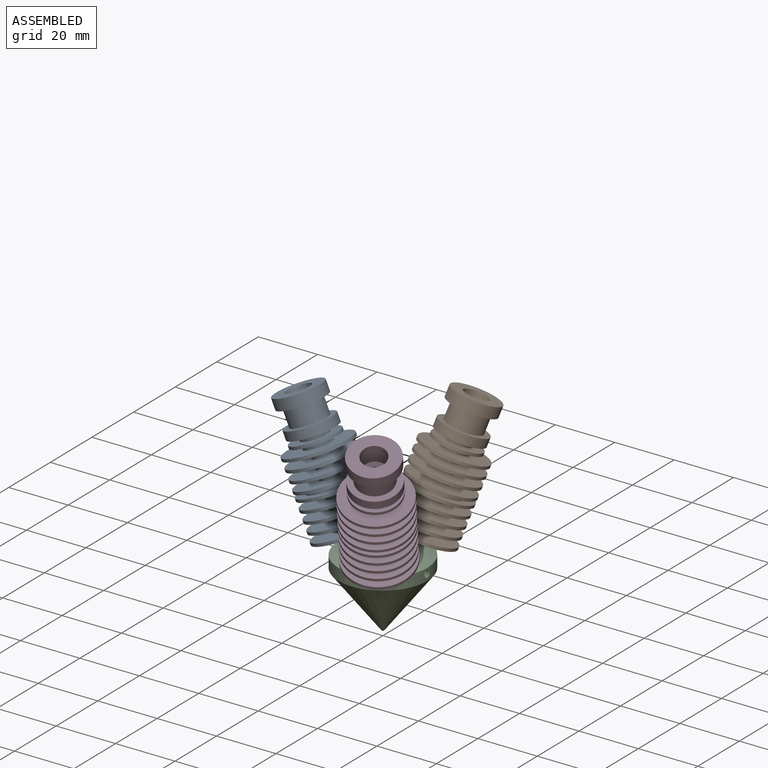
[diagram: assembled view]
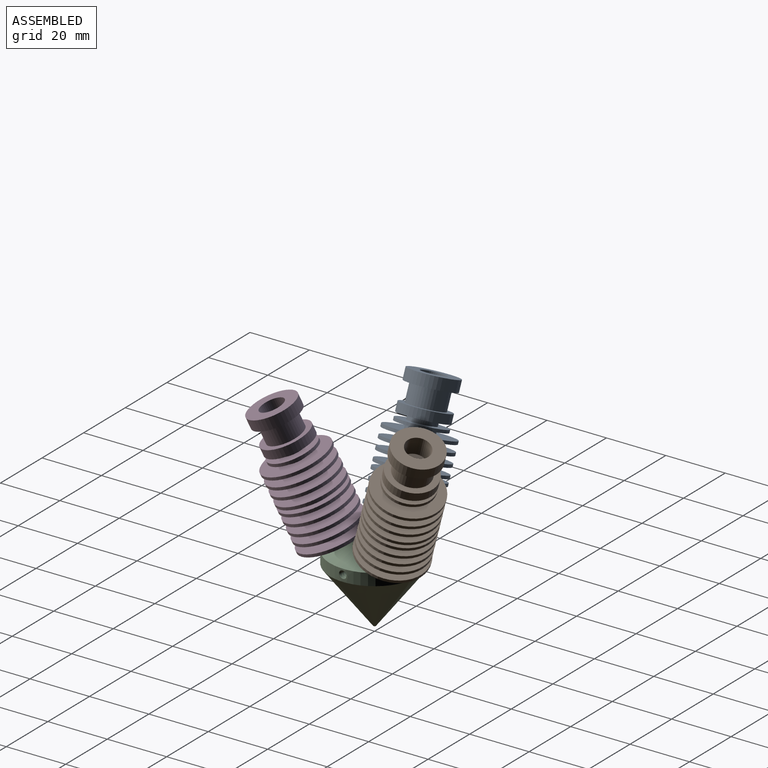
[diagram: assembled view, second angle]
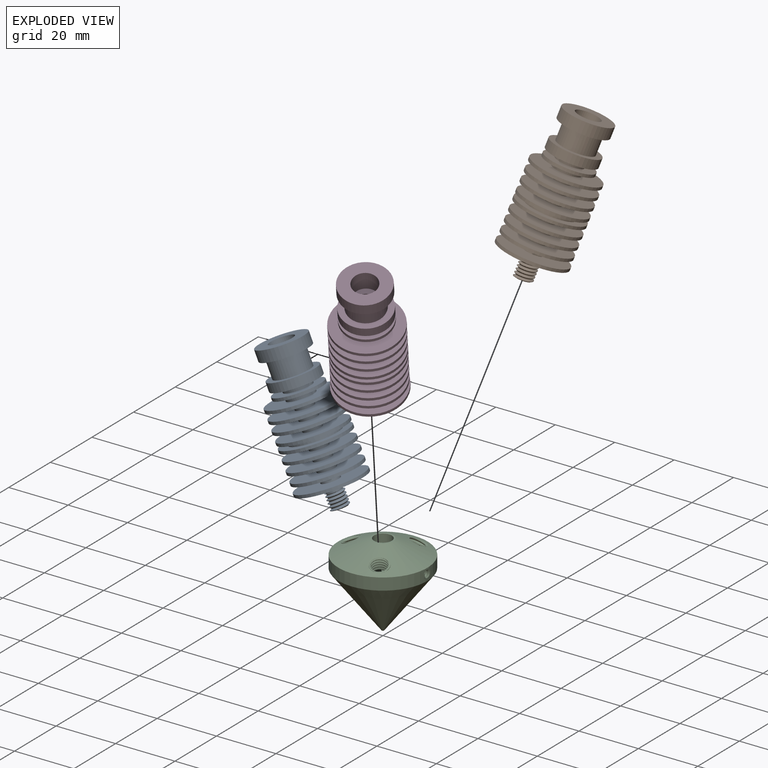
[diagram: exploded view]
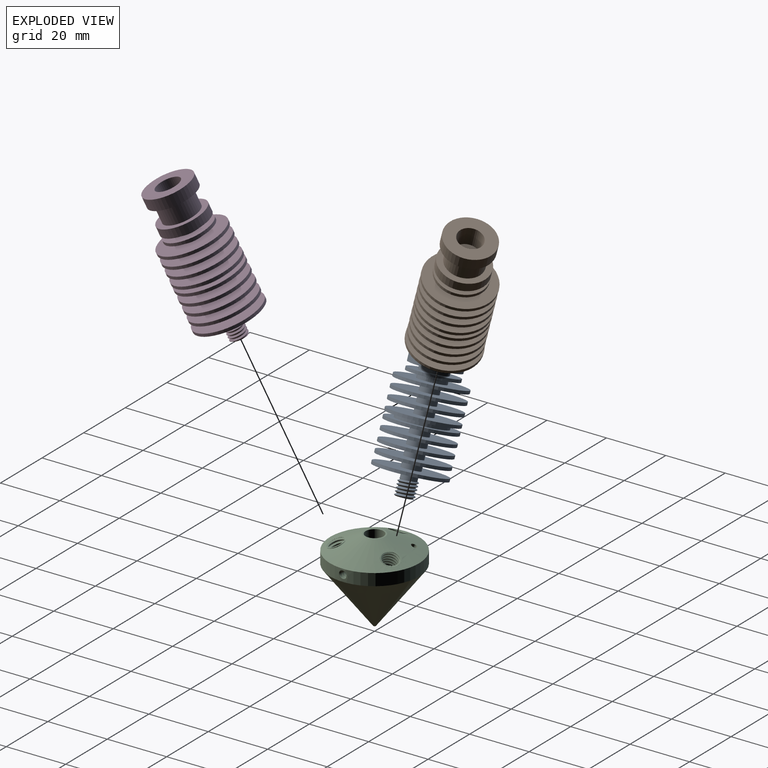
[diagram: exploded view, second angle]
ASSEMBLY  parts=4 mates=3
PART A: 58 faces, bbox 22.6x22.6x50.5 mm
  f0: plane 5.69x5.66mm, normal (0,0,-1), area 9.6mm2, adj f17,f18,f55,f56,f57
  f1: cylinder r=11mm len=22mm, axis (0,0,-1), area 69.1mm2, adj f2,f53
  f2: plane 22x22mm, normal (0,0,-1), area 351.9mm2, adj f1,f3
  f3: cylinder r=3mm len=6mm, axis (0,0,-1), area 42.4mm2, adj f2,f4
  f4: plane 22x22mm, normal (0,0,1), area 351.9mm2, adj f3,f5
  f5: cylinder r=11mm len=22mm, axis (0,0,-1), area 69.1mm2, adj f4,f6
  f6: plane 22x22mm, normal (0,0,-1), area 351.9mm2, adj f5,f7
  f7: cylinder r=3mm len=6mm, axis (0,0,-1), area 42.4mm2, adj f6,f8
  f8: plane 22x22mm, normal (0,0,1), area 351.9mm2, adj f7,f9
  f9: cylinder r=11mm len=22mm, axis (0,0,-1), area 69.1mm2, adj f8,f10
  f10: plane 22x22mm, normal (0,0,-1), area 351.9mm2, adj f9,f11
  f11: cylinder r=3mm len=6mm, axis (0,0,-1), area 42.4mm2, adj f10,f12
  f12: plane 22.3x22.3mm, normal (0,0,1), area 362.3mm2, adj f11,f13
  f13: cylinder r=11.15mm len=22.3mm, axis (0,0,-1), area 70.1mm2, adj f12,f14
  f14: plane 22.3x22.3mm, normal (0,0,-1), area 370.9mm2, adj f13,f15
  f15: cylinder r=2.5mm len=5mm, axis (0,0,-1), area 33mm2, adj f14,f16,f54
  f16: plane 5.63x5.38mm, normal (0,0,1), area 3.5mm2, adj f15,f17,f56,f57
  f17: cylinder r=3mm len=6mm, axis (0,0,-1), area 12mm2, adj f0,f16,f56,f57
  f18: cylinder r=2.05mm len=43.3mm, axis (0,0,-1), area 557.7mm2, adj f0,f19
  f19: plane 8x8mm, normal (0,0,1), area 37.1mm2, adj f18,f20
  f20: cylinder r=4mm len=8mm, axis (0,0,-1), area 163.4mm2, adj f19,f21
  f21: plane 16x16mm, normal (0,0,1), area 150.8mm2, adj f20,f22
  f22: cylinder r=8mm len=16mm, axis (0,0,-1), area 186mm2, adj f21,f23
  f23: plane 16x16mm, normal (0,0,-1), area 88mm2, adj f22,f24
  f24: cylinder r=6mm len=12mm, axis (0,0,-1), area 226.2mm2, adj f23,f25
  f25: plane 16x16mm, normal (0,0,1), area 88mm2, adj f24,f26
  f26: cylinder r=8mm len=16mm, axis (0,0,-1), area 150.8mm2, adj f25,f27
  f27: plane 16x16mm, normal (0,0,-1), area 137.4mm2, adj f26,f28
  f28: cylinder r=4.5mm len=9mm, axis (0,0,-1), area 42.4mm2, adj f27,f29
  f29: plane 16x16mm, normal (0,0,1), area 137.4mm2, adj f28,f30
  f30: cylinder r=8mm len=16mm, axis (0,0,-1), area 50.3mm2, adj f29,f31
  f31: plane 16x16mm, normal (0,0,-1), area 137.4mm2, adj f30,f32
  f32: cylinder r=4.5mm len=9mm, axis (0,0,-1), area 42.4mm2, adj f31,f33
  f33: plane 22x22mm, normal (0,0,1), area 316.5mm2, adj f32,f34
  f34: cylinder r=11mm len=22mm, axis (0,0,-1), area 69.1mm2, adj f33,f35
  f35: plane 22x22mm, normal (0,0,-1), area 351.9mm2, adj f34,f36
  f36: cylinder r=3mm len=6mm, axis (0,0,-1), area 42.4mm2, adj f35,f37
  f37: plane 22x22mm, normal (0,0,1), area 351.9mm2, adj f36,f38
  f38: cylinder r=11mm len=22mm, axis (0,0,-1), area 69.1mm2, adj f37,f39
  f39: plane 22x22mm, normal (0,0,-1), area 351.9mm2, adj f38,f40
  f40: cylinder r=3mm len=6mm, axis (0,0,-1), area 42.4mm2, adj f39,f41
  f41: plane 22x22mm, normal (0,0,1), area 351.9mm2, adj f40,f42
  f42: cylinder r=11mm len=22mm, axis (0,0,-1), area 69.1mm2, adj f41,f43
  f43: plane 22x22mm, normal (0,0,-1), area 351.9mm2, adj f42,f44
  f44: cylinder r=3mm len=6mm, axis (0,0,-1), area 42.4mm2, adj f43,f45
  f45: plane 22x22mm, normal (0,0,1), area 351.9mm2, adj f44,f46
  f46: cylinder r=11mm len=22mm, axis (0,0,-1), area 69.1mm2, adj f45,f47
  f47: plane 22x22mm, normal (0,0,-1), area 179.1mm2, adj f46,f48
  f48: cylinder r=8mm len=16mm, axis (0,0,-1), area 62.8mm2, adj f47,f49
  f49: plane 22x22mm, normal (0,0,1), area 179.1mm2, adj f48,f50
  f50: cylinder r=11mm len=22mm, axis (0,0,-1), area 69.1mm2, adj f49,f51
  f51: plane 22x22mm, normal (0,0,-1), area 351.9mm2, adj f50,f52
  f52: cylinder r=3mm len=6mm, axis (0,0,-1), area 42.4mm2, adj f51,f53
  f53: plane 22x22mm, normal (0,0,1), area 351.9mm2, adj f1,f52
  f54: plane 3.75x1.95mm, normal (0,0,-1), area 0.3mm2, adj f15,f55,f56,f57
  f55: bspline ~5.75x5.68mm, area 21.3mm2, adj f0,f54,f56,f57
  f56: bspline ~6.93x6mm, area 53.7mm2, adj f0,f16,f17,f54,f55
  f57: bspline ~6.93x6mm, area 53.7mm2, adj f0,f16,f17,f54,f55
PART B: same geometry as A
PART C: 59 faces, bbox 30.7x30.3x28.3 mm
  f0: cone r=3.5mm half-angle=66.5deg, axis (0,0,-1), area 637.1mm2, adj f1,f7,f18,f22,f23,f25,f26,f30
  f1: cylinder r=15mm len=30mm, axis (0,0,-1), area 369.3mm2, adj f0,f8,f46,f48,f49,f50
  f2: cylinder r=3mm len=15mm, axis (0,0,1), area 274.9mm2, adj f7,f43,f46,f47,f51,f52,f54,f56
  f3: cylinder r=0.2mm len=2.75mm, axis (-0.4,0,0.92), area 3.2mm2, adj f4,f5,f11,f42
  f4: cylinder r=0.2mm len=2.75mm, axis (0.2,-0.35,0.92), area 3.2mm2, adj f3,f5,f14,f42
  f5: cylinder r=0.2mm len=2.75mm, axis (0.2,0.35,0.92), area 3.2mm2, adj f3,f4,f17,f42
  f6: plane 0.8x0.8mm, normal (0,0,-1), area 0.4mm2, adj f8,f42
  f7: plane 7x7mm, normal (0,0,1), area 10.2mm2, adj f0,f2
  f8: cone r=15mm half-angle=37.5deg, axis (0,0,1), area 1159.3mm2, adj f1,f6
  f9: cone r=1mm half-angle=90deg, axis (-0.4,0,0.92), area 474.1mm2, adj f10,f27,f28,f29,f32
  f10: cylinder r=1mm len=17.27mm, axis (-0.4,0,0.92), area 112.9mm2, adj f9,f11
  f11: cone r=0.2mm half-angle=45deg, axis (-0.4,0,0.92), area 4.3mm2, adj f3,f10
  f12: cone r=1mm half-angle=90deg, axis (0.2,-0.35,0.92), area 474.1mm2, adj f13,f35,f36,f37,f41
  f13: cylinder r=1mm len=17.27mm, axis (0.2,-0.35,0.92), area 112.9mm2, adj f12,f14
  f14: cone r=0.2mm half-angle=45deg, axis (0.2,-0.35,0.92), area 4.3mm2, adj f4,f13
  f15: cone r=1mm half-angle=90deg, axis (0.2,0.35,0.92), area 474.1mm2, adj f16,f19,f20,f21,f24
  f16: cylinder r=1mm len=17.27mm, axis (0.2,0.35,0.92), area 112.9mm2, adj f15,f17
  f17: cone r=0.2mm half-angle=45deg, axis (0.2,0.35,0.92), area 4.3mm2, adj f5,f16
  f18: bspline ~7.91x7.08mm, area 13.7mm2, adj f0,f19,f20,f21,f22,f23,f25
  f19: bspline ~8.14x7.1mm, area 54.4mm2, adj f15,f18,f21,f24,f25
  f20: bspline ~8.14x6.98mm, area 54.5mm2, adj f15,f18,f21,f24,f25
  f21: plane 2.9x1.07mm, normal (0.2,0.35,0.92), area 0.2mm2, adj f15,f18,f19,f20
  f22: cylinder r=3.06mm len=4.21mm, axis (-0.2,-0.35,-0.92), area 0.1mm2, adj f0,f18,f25
  f23: cylinder r=3.06mm len=6.03mm, axis (-0.2,-0.35,-0.92), area 1.3mm2, adj f0,f18,f25
  f24: cylinder r=2.5mm len=6.58mm, axis (-0.2,-0.35,-0.92), area 19mm2, adj f15,f19,f20,f25
  f25: plane 6.29x6.04mm, normal (0.2,0.35,0.92), area 5.8mm2, adj f0,f18,f19,f20,f22,f23,f24
  f26: bspline ~7.51x7.13mm, area 13.7mm2, adj f0,f27,f28,f29,f30,f31,f33
  f27: bspline ~7.44x7.02mm, area 54.4mm2, adj f9,f26,f29,f32,f33
  f28: bspline ~7.44x7.02mm, area 54.5mm2, adj f9,f26,f29,f32,f33
  f29: plane 2.23x2.08mm, normal (-0.4,0,0.92), area 0.2mm2, adj f9,f26,f27,f28
  f30: cylinder r=3.06mm len=3.1mm, axis (0.4,0,-0.92), area 0.1mm2, adj f0,f26,f33
  f31: cylinder r=3.06mm len=6.13mm, axis (0.4,0,-0.92), area 0.5mm2, adj f0,f26,f33
  f32: cylinder r=2.5mm len=6.58mm, axis (0.4,0,-0.92), area 19mm2, adj f9,f27,f28,f33
  f33: plane 6.41x5.91mm, normal (-0.4,0,0.92), area 5.8mm2, adj f0,f26,f27,f28,f30,f31,f32
  f34: bspline ~8.26x7.08mm, area 13.7mm2, adj f0,f35,f36,f37,f38,f39,f40
  f35: bspline ~8.14x6.98mm, area 54.4mm2, adj f12,f34,f37,f38,f41
  f36: bspline ~8.14x6.98mm, area 54.5mm2, adj f12,f34,f37,f38,f41
  f37: plane 2.95x0.94mm, normal (0.2,-0.35,0.92), area 0.2mm2, adj f12,f34,f35,f36
  f38: plane 6.29x6.04mm, normal (0.2,-0.35,0.92), area 5.8mm2, adj f0,f34,f35,f36,f39,f40,f41
  f39: cylinder r=3.06mm len=6.03mm, axis (-0.2,0.35,-0.92), area 1.3mm2, adj f0,f34,f38
  f40: cylinder r=3.06mm len=4.18mm, axis (-0.2,0.35,-0.92), area 0.1mm2, adj f0,f34,f38
  f41: cylinder r=2.5mm len=6.58mm, axis (-0.2,0.35,-0.92), area 19mm2, adj f12,f35,f36,f38
  f42: cylinder r=0.2mm len=0.48mm, axis (0,0,-1), area 0.6mm2, adj f3,f4,f5,f6
  f43: cone r=0mm half-angle=59deg, axis (0,0,1), area 33mm2, adj f2
  f44: bspline ~13.15x3.56mm, area 62.2mm2, adj f46,f53,f55,f56
  f45: bspline ~13.15x3.56mm, area 62.1mm2, adj f46,f53,f55,f56
  f46: bspline ~12.79x3.66mm, area 17.5mm2, adj f1,f2,f44,f45,f47,f48,f50,f51
  f47: plane 0.84x0.09mm, normal (1,0,0), area 0mm2, adj f2,f46
  f48: cylinder r=1.56mm len=0.81mm, axis (-1,0,0), area 0mm2, adj f1,f46,f55
  f49: cylinder r=1.56mm len=3.13mm, axis (-1,0,0), area 0mm2, adj f1,f55
  f50: cylinder r=1.56mm len=2.67mm, axis (-1,0,0), area 0.1mm2, adj f1,f46,f55
  f51: cylinder r=1.56mm len=1.57mm, axis (-1,0,0), area 0.1mm2, adj f2,f46
  f52: cylinder r=1.56mm len=3mm, axis (-1,0,0), area 0.7mm2, adj f2,f46,f56
  f53: cylinder r=1mm len=12.4mm, axis (-1,0,0), area 21.5mm2, adj f44,f45,f55,f56
  f54: cylinder r=1.56mm len=2.98mm, axis (-1,0,0), area 0.8mm2, adj f2,f46,f56
  f55: plane 3.39x3.39mm, normal (1,0,0), area 2.7mm2, adj f44,f45,f46,f48,f49,f50,f53
  f56: plane 3.4x3.27mm, normal (-1,0,0), area 2.7mm2, adj f2,f44,f45,f46,f52,f53,f54
  f57: cylinder r=1mm len=9.92mm, axis (-0.2,0.35,0.92), area 62.5mm2, adj f0,f58
  f58: plane 1.96x1.88mm, normal (-0.2,0.35,0.92), area 3.1mm2, adj f57
PART D: same geometry as A
PLACE A rot(axis=(0,-1,0),23.5deg) t=(-11.45,0,31.83)mm
PLACE B rot(axis=(-0.87,0.48,-0.09),23.6deg) t=(5.72,9.92,31.83)mm
PLACE C t=(0,0,5)mm fixed
PLACE D rot(axis=(0.87,0.48,0.09),23.6deg) t=(5.72,-9.92,31.83)mm
MATE fastened A.f1 <-> C.f3  axis (0.4,0,-0.92) through (-8.62,0,25.32)mm
MATE fastened D.f1 <-> C.f14  axis (-0.2,0.35,-0.92) through (4.31,-7.46,25.32)mm
MATE fastened B.f1 <-> C.f17  axis (-0.2,-0.35,-0.92) through (4.31,7.46,25.32)mm
